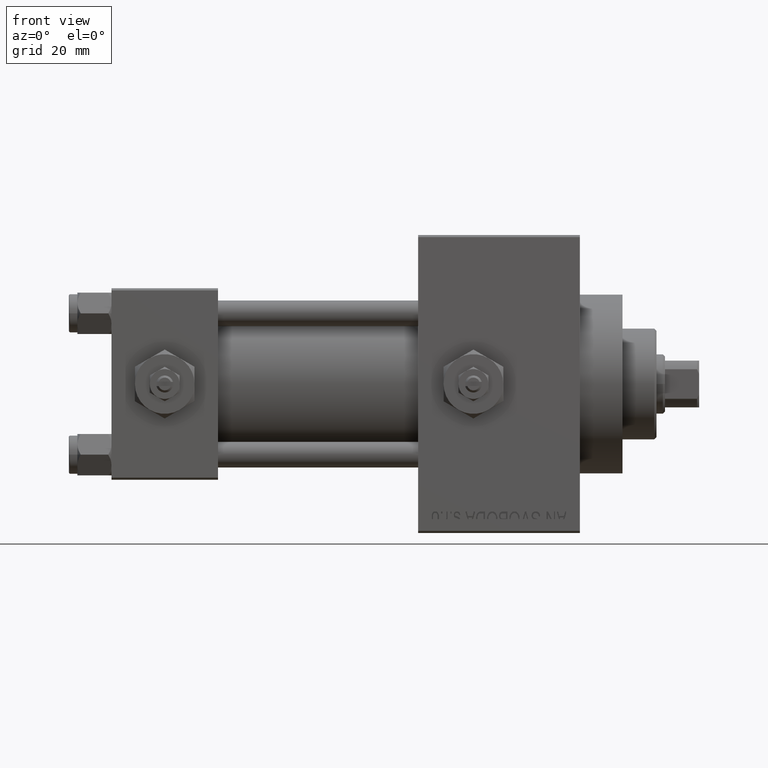
[diagram: clean part render]
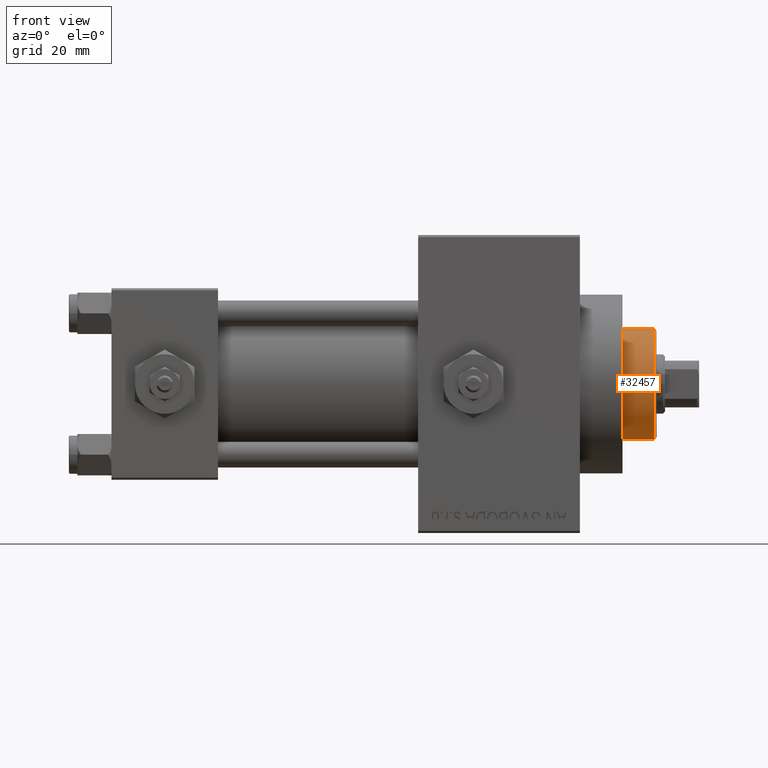
[diagram: same view with one face highlighted and labeled with its STEP entity id]
A machine part, front view. The second image highlights one B-rep face of the part: STEP entity #32457.
In plain terms, the highlighted cylindrical surface (partial cylindrical patch) has radius 13 mm, axis along (-1, 0, 0).
Its self-contained STEP definition (entity closure, byte-faithful):
#961 = CARTESIAN_POINT ( 'NONE',  ( 0.000000000000000000, 0.000000000000000000, 50.75999999999997669 ) ) ;
#1427 = FACE_OUTER_BOUND ( 'NONE', #2580, .T. ) ;
#2580 = EDGE_LOOP ( 'NONE', ( #31874, #3387, #30043, #46820 ) ) ;
#3387 = ORIENTED_EDGE ( 'NONE', *, *, #18865, .T. ) ;
#5064 = AXIS2_PLACEMENT_3D ( 'NONE', #961, #11201, #27967 ) ;
#7352 = EDGE_CURVE ( 'NONE', #30630, #34117, #27138, .T. ) ;
#8552 = DIRECTION ( 'NONE',  ( -0.000000000000000000, -0.000000000000000000, -1.000000000000000000 ) ) ;
#9984 = CARTESIAN_POINT ( 'NONE',  ( 13.00000000000000178, 1.592040838891559293E-15, 43.25999999999999801 ) ) ;
#11201 = DIRECTION ( 'NONE',  ( 0.000000000000000000, 0.000000000000000000, -1.000000000000000000 ) ) ;
#11921 = DIRECTION ( 'NONE',  ( -0.000000000000000000, -0.000000000000000000, -1.000000000000000000 ) ) ;
#12410 = CARTESIAN_POINT ( 'NONE',  ( 13.00000000000000178, 1.592040838891559293E-15, 51.25999999999999801 ) ) ;
#16316 = VERTEX_POINT ( 'NONE', #9984 ) ;
#16545 = CYLINDRICAL_SURFACE ( 'NONE', #25574, 13.00000000000000178 ) ;
#17525 = CARTESIAN_POINT ( 'NONE',  ( 0.000000000000000000, 0.000000000000000000, 51.25999999999999801 ) ) ;
#18865 = EDGE_CURVE ( 'NONE', #30336, #16316, #41727, .T. ) ;
#19333 = AXIS2_PLACEMENT_3D ( 'NONE', #33531, #41234, #37504 ) ;
#19401 = CARTESIAN_POINT ( 'NONE',  ( -13.00000000000000178, 0.000000000000000000, 50.75999999999997669 ) ) ;
#19706 = CARTESIAN_POINT ( 'NONE',  ( 13.00000000000000178, 1.592040838891559293E-15, 50.75999999999997669 ) ) ;
#21440 = EDGE_CURVE ( 'NONE', #16316, #34117, #39914, .T. ) ;
#22158 = VECTOR ( 'NONE', #8552, 1000.000000000000000 ) ;
#23270 = CIRCLE ( 'NONE', #5064, 13.00000000000000178 ) ;
#25464 = DIRECTION ( 'NONE',  ( -1.000000000000000000, 0.000000000000000000, 0.000000000000000000 ) ) ;
#25574 = AXIS2_PLACEMENT_3D ( 'NONE', #17525, #45094, #25464 ) ;
#27138 = LINE ( 'NONE', #31361, #22158 ) ;
#27967 = DIRECTION ( 'NONE',  ( 1.000000000000000000, 0.000000000000000000, 0.000000000000000000 ) ) ;
#30043 = ORIENTED_EDGE ( 'NONE', *, *, #21440, .T. ) ;
#30336 = VERTEX_POINT ( 'NONE', #19706 ) ;
#30630 = VERTEX_POINT ( 'NONE', #19401 ) ;
#31361 = CARTESIAN_POINT ( 'NONE',  ( -13.00000000000000178, 0.000000000000000000, 51.25999999999999801 ) ) ;
#31874 = ORIENTED_EDGE ( 'NONE', *, *, #33984, .T. ) ;
#32457 = ADVANCED_FACE ( 'NONE', ( #1427 ), #16545, .T. ) ;
#33531 = CARTESIAN_POINT ( 'NONE',  ( 0.000000000000000000, 0.000000000000000000, 43.25999999999999801 ) ) ;
#33673 = VECTOR ( 'NONE', #11921, 1000.000000000000000 ) ;
#33984 = EDGE_CURVE ( 'NONE', #30630, #30336, #23270, .T. ) ;
#34117 = VERTEX_POINT ( 'NONE', #34900 ) ;
#34900 = CARTESIAN_POINT ( 'NONE',  ( -13.00000000000000178, 0.000000000000000000, 43.25999999999999801 ) ) ;
#37504 = DIRECTION ( 'NONE',  ( 1.000000000000000000, 0.000000000000000000, 0.000000000000000000 ) ) ;
#39914 = CIRCLE ( 'NONE', #19333, 13.00000000000000178 ) ;
#41234 = DIRECTION ( 'NONE',  ( 0.000000000000000000, 0.000000000000000000, 1.000000000000000000 ) ) ;
#41727 = LINE ( 'NONE', #12410, #33673 ) ;
#45094 = DIRECTION ( 'NONE',  ( -0.000000000000000000, -0.000000000000000000, -1.000000000000000000 ) ) ;
#46820 = ORIENTED_EDGE ( 'NONE', *, *, #7352, .F. ) ;